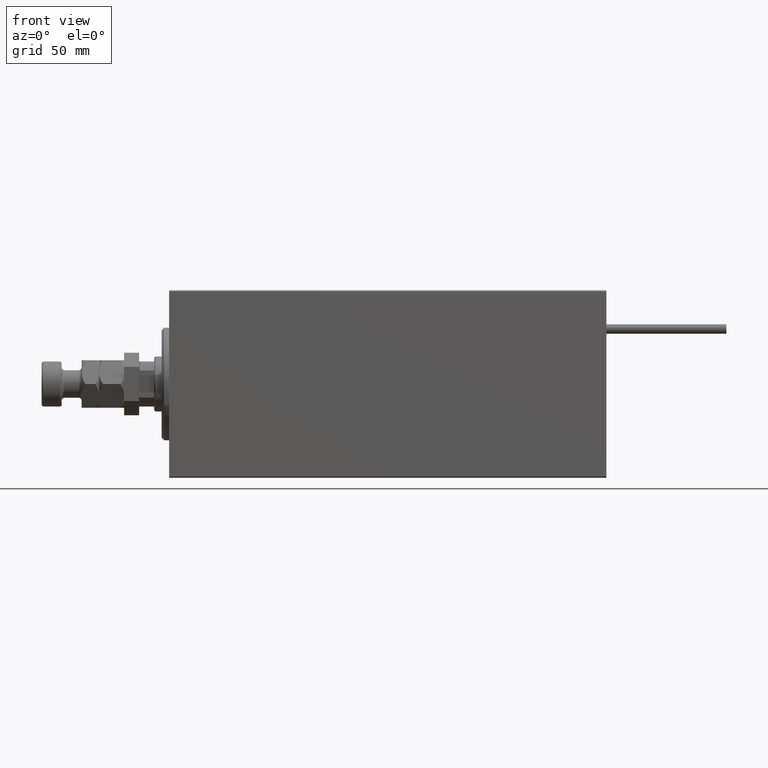
[diagram: clean part render]
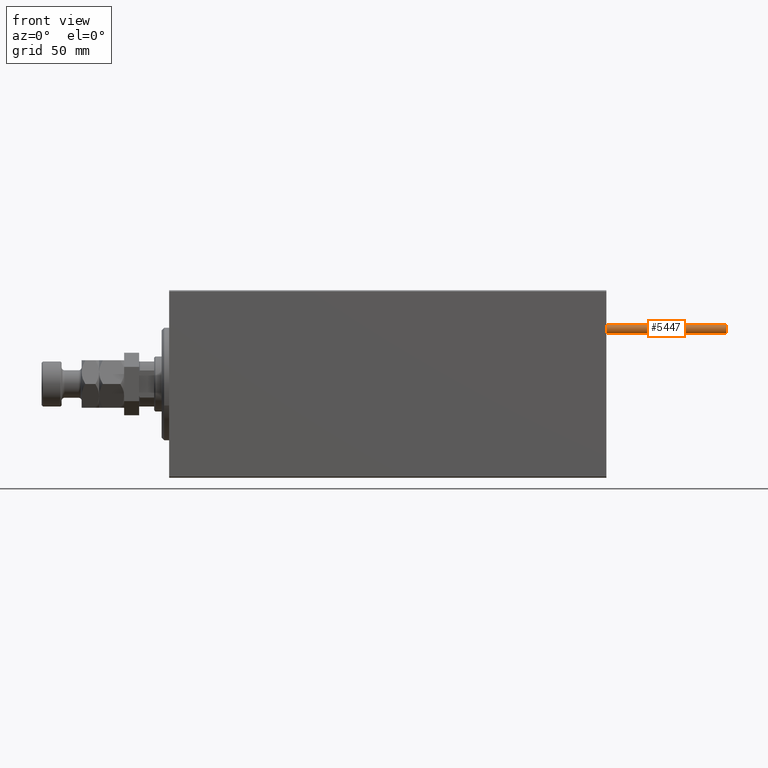
[diagram: same view with one face highlighted and labeled with its STEP entity id]
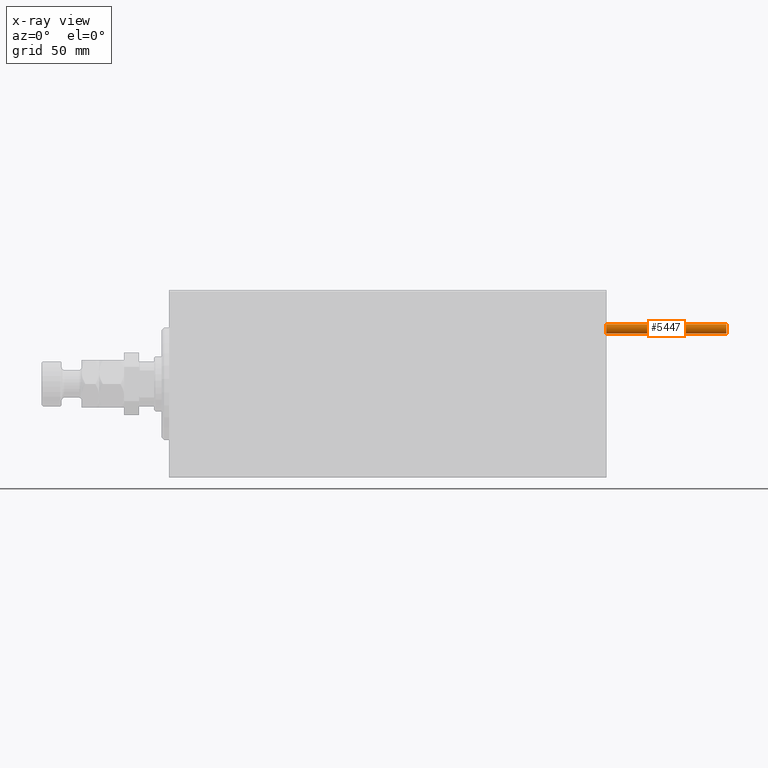
[diagram: x-ray of the same camera — body ghosted, the highlighted face saturated]
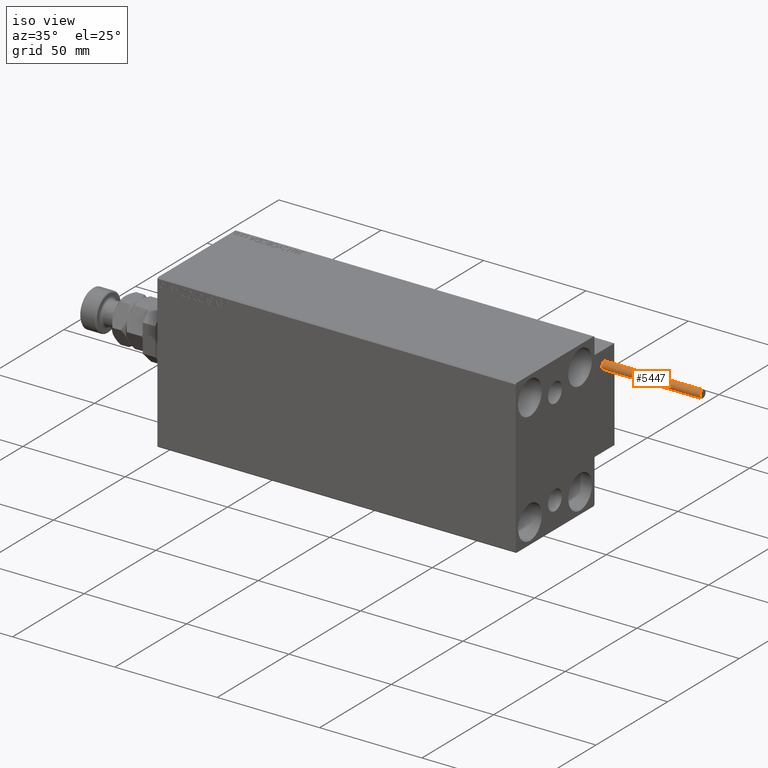
[diagram: same view with one face highlighted and labeled with its STEP entity id]
A machine part, front view. The second image highlights one B-rep face of the part: STEP entity #5447.
The next image is the same camera in x-ray: the body ghosted, the highlighted face saturated — about 0% of this face is hidden behind the body in this view.
A second angle (iso view) of the same face is appended — the face is thin or edge-on in the first view.
In plain terms, the highlighted cylindrical surface (edge-blend (fillet) strip) has radius 1.9 mm, axis along (-1, -0, 0).
Its self-contained STEP definition (entity closure, byte-faithful):
#2810 = ORIENTED_EDGE ( 'NONE', *, *, #6812, .T. ) ;
#3393 = VECTOR ( 'NONE', #38229, 1000.000000000000000 ) ;
#3717 = DIRECTION ( 'NONE',  ( 0.000000000000000000, 0.000000000000000000, 1.000000000000000000 ) ) ;
#5447 = ADVANCED_FACE ( 'NONE', ( #6664 ), #37482, .T. ) ;
#6213 = EDGE_LOOP ( 'NONE', ( #16076, #36169, #22358, #2810 ) ) ;
#6421 = DIRECTION ( 'NONE',  ( -0.000000000000000000, -0.000000000000000000, -1.000000000000000000 ) ) ;
#6664 = FACE_OUTER_BOUND ( 'NONE', #6213, .T. ) ;
#6812 = EDGE_CURVE ( 'NONE', #28358, #15953, #21926, .T. ) ;
#10516 = VERTEX_POINT ( 'NONE', #16005 ) ;
#12840 = DIRECTION ( 'NONE',  ( 0.000000000000000000, 0.000000000000000000, 1.000000000000000000 ) ) ;
#14481 = CARTESIAN_POINT ( 'NONE',  ( -1.899999999999999467, 0.000000000000000000, 48.00000000000000000 ) ) ;
#15953 = VERTEX_POINT ( 'NONE', #47756 ) ;
#16005 = CARTESIAN_POINT ( 'NONE',  ( 1.899999999999999467, 2.326828918379970872E-16, 48.00000000000000000 ) ) ;
#16076 = ORIENTED_EDGE ( 'NONE', *, *, #23236, .F. ) ;
#17650 = DIRECTION ( 'NONE',  ( -1.000000000000000000, 0.000000000000000000, 0.000000000000000000 ) ) ;
#19897 = CARTESIAN_POINT ( 'NONE',  ( 0.000000000000000000, 0.000000000000000000, 0.000000000000000000 ) ) ;
#20343 = EDGE_CURVE ( 'NONE', #23239, #28358, #41664, .T. ) ;
#21046 = AXIS2_PLACEMENT_3D ( 'NONE', #45578, #30159, #17650 ) ;
#21926 = CIRCLE ( 'NONE', #46915, 1.899999999999999467 ) ;
#22304 = LINE ( 'NONE', #34311, #3393 ) ;
#22358 = ORIENTED_EDGE ( 'NONE', *, *, #20343, .T. ) ;
#22929 = AXIS2_PLACEMENT_3D ( 'NONE', #39457, #3717, #43122 ) ;
#23236 = EDGE_CURVE ( 'NONE', #10516, #15953, #22304, .T. ) ;
#23239 = VERTEX_POINT ( 'NONE', #14481 ) ;
#28358 = VERTEX_POINT ( 'NONE', #28891 ) ;
#28891 = CARTESIAN_POINT ( 'NONE',  ( -1.899999999999999467, 0.000000000000000000, 0.000000000000000000 ) ) ;
#30159 = DIRECTION ( 'NONE',  ( -0.000000000000000000, -0.000000000000000000, -1.000000000000000000 ) ) ;
#34311 = CARTESIAN_POINT ( 'NONE',  ( 1.899999999999999467, 2.326828918379970872E-16, 48.00000000000000000 ) ) ;
#35799 = DIRECTION ( 'NONE',  ( 1.000000000000000000, 0.000000000000000000, 0.000000000000000000 ) ) ;
#36169 = ORIENTED_EDGE ( 'NONE', *, *, #38130, .F. ) ;
#37482 = CYLINDRICAL_SURFACE ( 'NONE', #21046, 1.899999999999999467 ) ;
#38130 = EDGE_CURVE ( 'NONE', #23239, #10516, #44579, .T. ) ;
#38229 = DIRECTION ( 'NONE',  ( -0.000000000000000000, -0.000000000000000000, -1.000000000000000000 ) ) ;
#39457 = CARTESIAN_POINT ( 'NONE',  ( 0.000000000000000000, 0.000000000000000000, 48.00000000000000000 ) ) ;
#41664 = LINE ( 'NONE', #45581, #45776 ) ;
#43122 = DIRECTION ( 'NONE',  ( 1.000000000000000000, 0.000000000000000000, 0.000000000000000000 ) ) ;
#44579 = CIRCLE ( 'NONE', #22929, 1.899999999999999467 ) ;
#45578 = CARTESIAN_POINT ( 'NONE',  ( 0.000000000000000000, 0.000000000000000000, 48.00000000000000000 ) ) ;
#45581 = CARTESIAN_POINT ( 'NONE',  ( -1.899999999999999467, 0.000000000000000000, 48.00000000000000000 ) ) ;
#45776 = VECTOR ( 'NONE', #6421, 1000.000000000000000 ) ;
#46915 = AXIS2_PLACEMENT_3D ( 'NONE', #19897, #12840, #35799 ) ;
#47756 = CARTESIAN_POINT ( 'NONE',  ( 1.899999999999999467, 2.326828918379970872E-16, 0.000000000000000000 ) ) ;